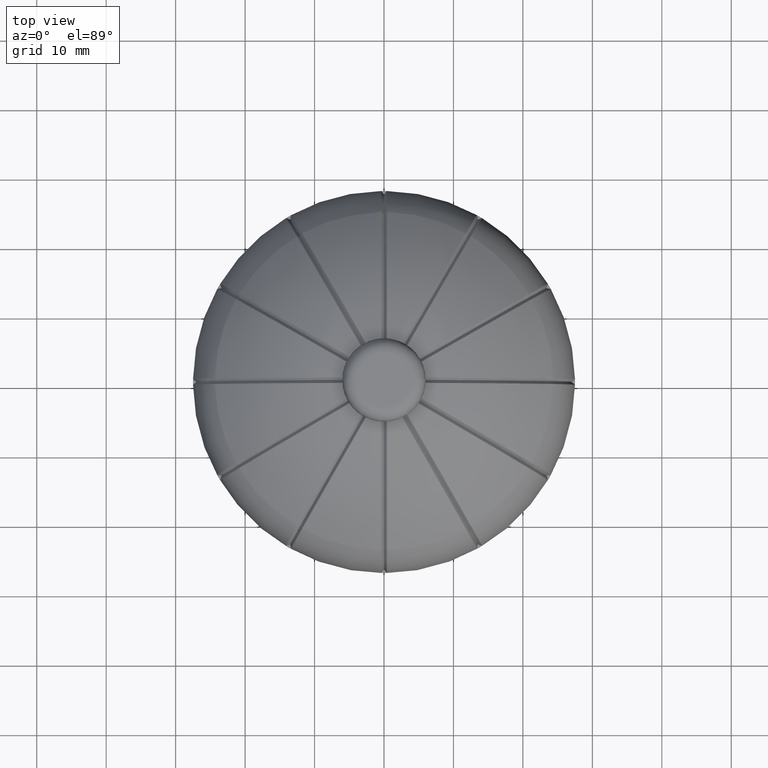
[diagram: clean part render]
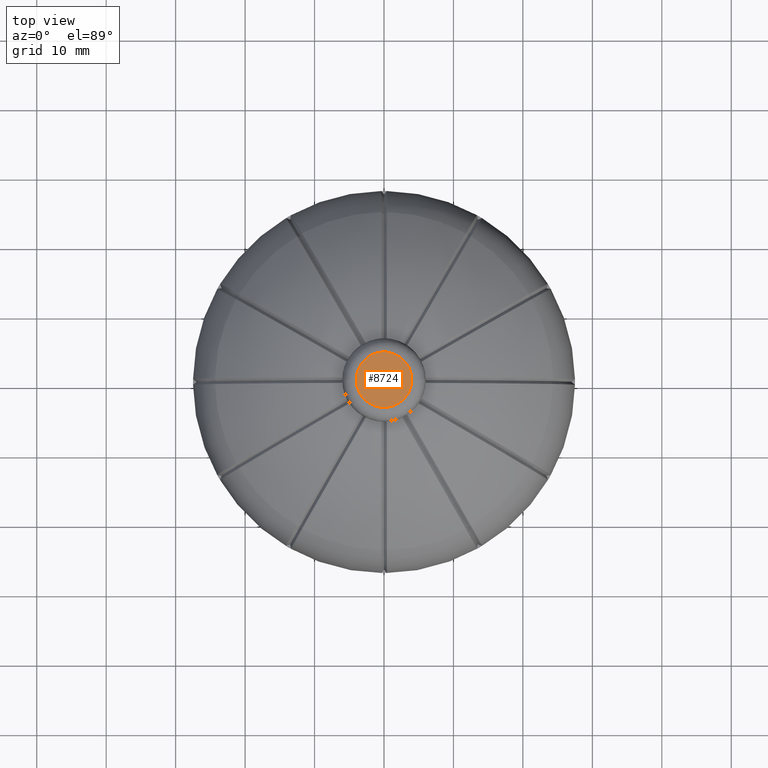
[diagram: same view with one face highlighted and labeled with its STEP entity id]
A machine part, top view. The second image highlights one B-rep face of the part: STEP entity #8724.
In plain terms, the highlighted planar face has unit normal (0, 0, 1).
Its self-contained STEP definition (entity closure, byte-faithful):
#556 = EDGE_CURVE ( 'NONE', #11156, #7153, #4408, .T. ) ;
#1319 = ORIENTED_EDGE ( 'NONE', *, *, #556, .T. ) ;
#1327 = DIRECTION ( 'NONE',  ( 0.0000000000000000000, 0.0000000000000000000, 1.000000000000000000 ) ) ;
#3024 = CIRCLE ( 'NONE', #4538, 4.000000000000000900 ) ;
#4408 = CIRCLE ( 'NONE', #4503, 4.000000000000000900 ) ;
#4503 = AXIS2_PLACEMENT_3D ( 'NONE', #6944, #13479, #12390 ) ;
#4538 = AXIS2_PLACEMENT_3D ( 'NONE', #12211, #5682, #13287 ) ;
#5682 = DIRECTION ( 'NONE',  ( 0.0000000000000000000, 0.0000000000000000000, 1.000000000000000000 ) ) ;
#5961 = FACE_OUTER_BOUND ( 'NONE', #6912, .T. ) ;
#6727 = AXIS2_PLACEMENT_3D ( 'NONE', #6756, #1327, #9000 ) ;
#6756 = CARTESIAN_POINT ( 'NONE',  ( 0.0000000000000000000, 0.0000000000000000000, 36.00000000000000700 ) ) ;
#6912 = EDGE_LOOP ( 'NONE', ( #7388, #1319 ) ) ;
#6944 = CARTESIAN_POINT ( 'NONE',  ( 0.0000000000000000000, 0.0000000000000000000, 36.00000000000000700 ) ) ;
#7153 = VERTEX_POINT ( 'NONE', #13612 ) ;
#7388 = ORIENTED_EDGE ( 'NONE', *, *, #8709, .T. ) ;
#7893 = PLANE ( 'NONE',  #6727 ) ;
#8709 = EDGE_CURVE ( 'NONE', #7153, #11156, #3024, .T. ) ;
#8724 = ADVANCED_FACE ( 'NONE', ( #5961 ), #7893, .T. ) ;
#9000 = DIRECTION ( 'NONE',  ( 1.000000000000000000, 0.0000000000000000000, -0.0000000000000000000 ) ) ;
#11156 = VERTEX_POINT ( 'NONE', #13203 ) ;
#12211 = CARTESIAN_POINT ( 'NONE',  ( 0.0000000000000000000, 0.0000000000000000000, 36.00000000000000700 ) ) ;
#12390 = DIRECTION ( 'NONE',  ( 1.000000000000000000, 0.0000000000000000000, 0.0000000000000000000 ) ) ;
#13203 = CARTESIAN_POINT ( 'NONE',  ( -4.000000000000000900, 6.123233995736767300E-016, 36.00000000000000700 ) ) ;
#13287 = DIRECTION ( 'NONE',  ( 1.000000000000000000, 0.0000000000000000000, 0.0000000000000000000 ) ) ;
#13479 = DIRECTION ( 'NONE',  ( 0.0000000000000000000, 0.0000000000000000000, 1.000000000000000000 ) ) ;
#13612 = CARTESIAN_POINT ( 'NONE',  ( 4.000000000000000900, 0.0000000000000000000, 36.00000000000000700 ) ) ;